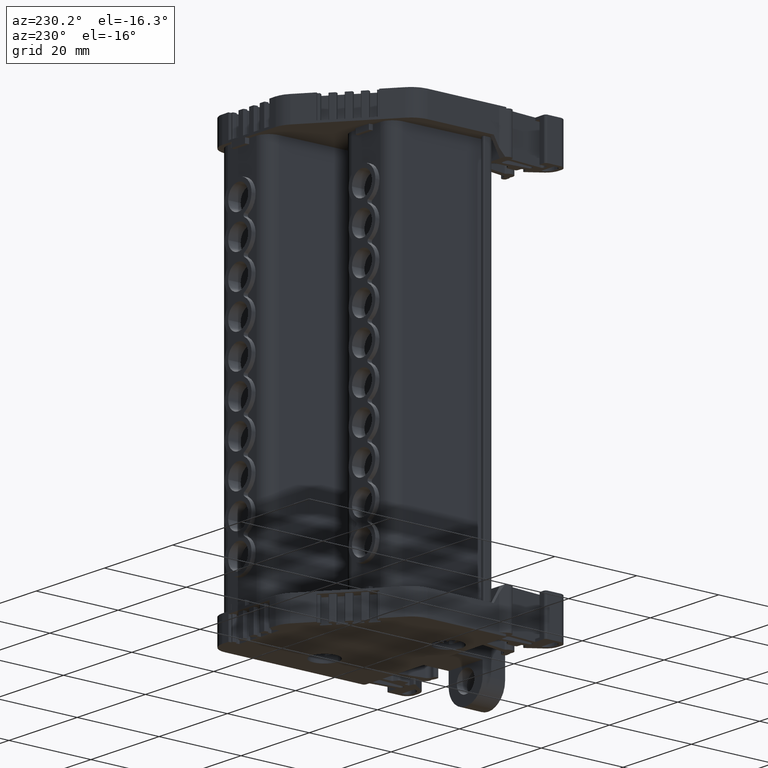
[diagram: clean part render]
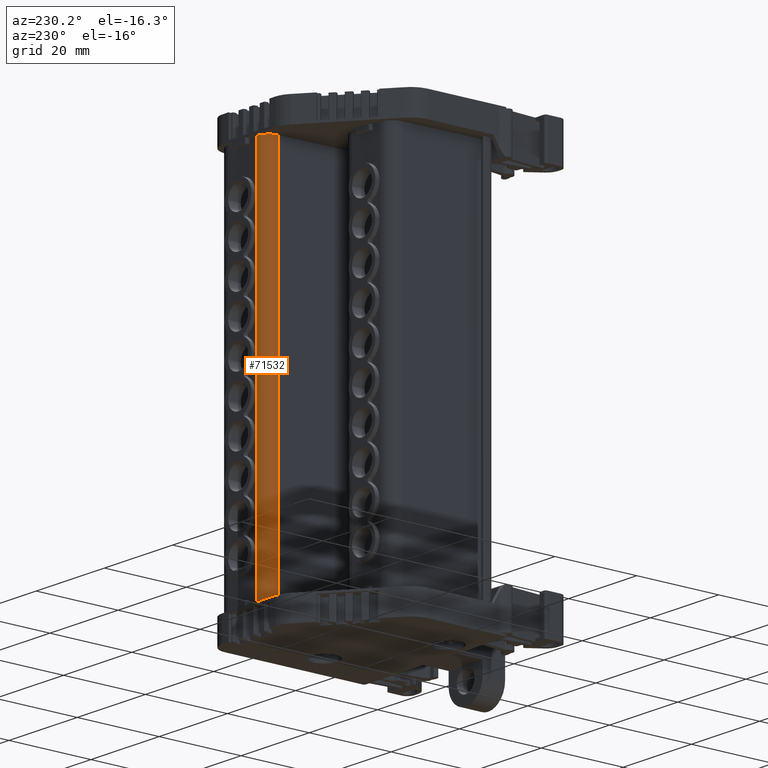
[diagram: same view with one face highlighted and labeled with its STEP entity id]
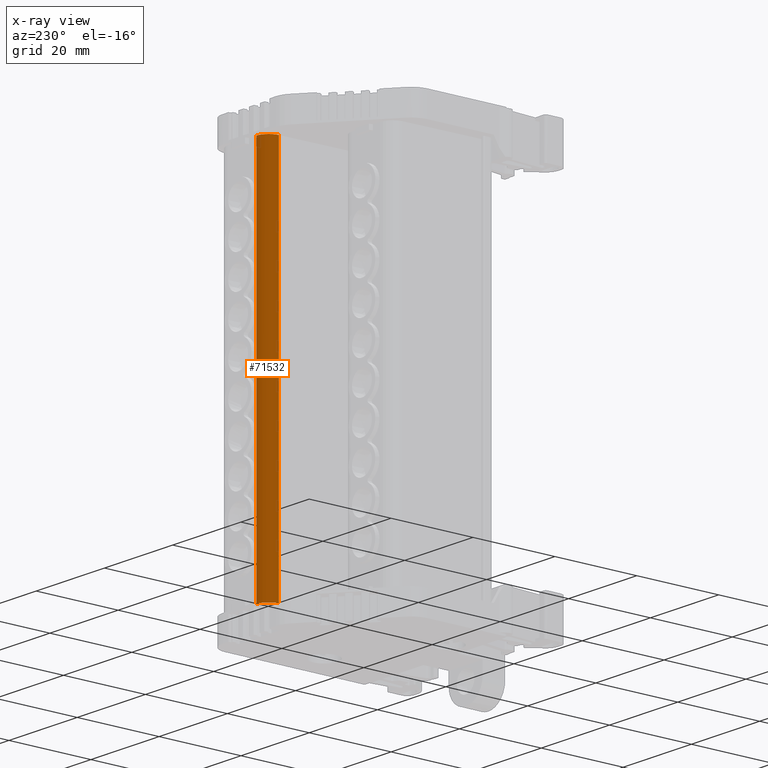
[diagram: x-ray of the same camera — body ghosted, the highlighted face saturated]
A machine part, auxiliary view. The second image highlights one B-rep face of the part: STEP entity #71532.
The next image is the same camera in x-ray: the body ghosted, the highlighted face saturated — about 0% of this face is hidden behind the body in this view.
In plain terms, the highlighted cylindrical surface (edge-blend (fillet) strip) has radius 2.9989 mm, axis along (-0, -0, -1).
Its self-contained STEP definition (entity closure, byte-faithful):
#2738 = CARTESIAN_POINT ( 'NONE',  ( -38.77832966746753800, 48.51556673507089800, -36.09641155510129100 ) ) ;
#2832 = CARTESIAN_POINT ( 'NONE',  ( -41.77673668709966400, 45.56904048599096800, -36.09641155509967100 ) ) ;
#6140 = VERTEX_POINT ( 'NONE', #49371 ) ;
#6170 = VERTEX_POINT ( 'NONE', #49372 ) ;
#22410 = LINE ( 'NONE', #22462, #25426 ) ;
#22462 = CARTESIAN_POINT ( 'NONE',  ( -41.77673668709328300, 45.56904048599116000, -23.93093807035376500 ) ) ;
#22477 = DIRECTION ( 'NONE',  ( 5.325625425352352500E-013, 1.604252062634170100E-014, 1.000000000000000000 ) ) ;
#22512 = CARTESIAN_POINT ( 'NONE',  ( -38.77832966746753800, 48.51556673507089800, -36.09641155510129100 ) ) ;
#22514 = CARTESIAN_POINT ( 'NONE',  ( -38.77832966744316000, 48.51556673507284500, 55.46945965624414800 ) ) ;
#22570 = CARTESIAN_POINT ( 'NONE',  ( -39.55456103231055200, 48.43925996020429600, 55.46945965624458100 ) ) ;
#22577 = CARTESIAN_POINT ( 'NONE',  ( -41.15713683461223800, 47.38355890510240400, 55.46945965624544100 ) ) ;
#22612 = CARTESIAN_POINT ( 'NONE',  ( -41.77673668705082800, 45.56904048599127300, 55.46945965624579600 ) ) ;
#22620 = CARTESIAN_POINT ( 'NONE',  ( -39.16651845409662500, 48.51556673506508600, 55.46945965624434600 ) ) ;
#22621 = CARTESIAN_POINT ( 'NONE',  ( -41.38042425238855100, 47.05715042564859400, 55.46945965624555400 ) ) ;
#22629 = CARTESIAN_POINT ( 'NONE',  ( -40.27312969142844400, 48.14528576018201300, 55.46945965624495000 ) ) ;
#22649 = CARTESIAN_POINT ( 'NONE',  ( -41.76996186075249500, 45.95717002463248900, 55.46945965624578200 ) ) ;
#22651 = CARTESIAN_POINT ( 'NONE',  ( -41.68689443099848500, 46.34382176523457300, 55.46945965624575300 ) ) ;
#22652 = CARTESIAN_POINT ( 'NONE',  ( -40.60338536005419000, 47.92772896360436600, 55.46945965624513500 ) ) ;
#22654 = CARTESIAN_POINT ( 'NONE',  ( -38.77832966744316000, 48.51556673507284500, 55.46945965624414800 ) ) ;
#24649 = EDGE_LOOP ( 'NONE', ( #83027, #82952, #82935, #82958 ) ) ;
#25426 = VECTOR ( 'NONE', #22477, 1000.000000000000000 ) ;
#33594 = CARTESIAN_POINT ( 'NONE',  ( -41.77673668709966400, 45.56904048599096800, -36.09641155509967100 ) ) ;
#33604 = CARTESIAN_POINT ( 'NONE',  ( -41.15713683466101000, 47.38355890510094100, -36.09641155510001200 ) ) ;
#33606 = CARTESIAN_POINT ( 'NONE',  ( -40.60338536010296900, 47.92772896360290200, -36.09641155510032500 ) ) ;
#33610 = CARTESIAN_POINT ( 'NONE',  ( -40.27312969147721600, 48.14528576018052100, -36.09641155510048800 ) ) ;
#33623 = CARTESIAN_POINT ( 'NONE',  ( -38.77832966746753800, 48.51556673507089800, -36.09641155510129100 ) ) ;
#33624 = CARTESIAN_POINT ( 'NONE',  ( -39.16651845414537500, 48.51556673506362200, -36.09641155510107800 ) ) ;
#33628 = CARTESIAN_POINT ( 'NONE',  ( -41.68689443104725000, 46.34382176523310900, -36.09641155509970600 ) ) ;
#33630 = CARTESIAN_POINT ( 'NONE',  ( -41.76996186080126000, 45.95717002463102600, -36.09641155509965700 ) ) ;
#33637 = CARTESIAN_POINT ( 'NONE',  ( -39.55456103235931000, 48.43925996020283300, -36.09641155510089300 ) ) ;
#33644 = CARTESIAN_POINT ( 'NONE',  ( -41.38042425243732200, 47.05715042564712300, -36.09641155509988400 ) ) ;
#36177 = VERTEX_POINT ( 'NONE', #2738 ) ;
#36189 = VERTEX_POINT ( 'NONE', #2832 ) ;
#36774 = B_SPLINE_CURVE_WITH_KNOTS ( 'NONE', 3,
 ( #33623, #33624, #33637, #33610, #33606, #33604, #33644, #33628, #33630, #33594 ),
 .UNSPECIFIED., .F., .F.,
 ( 4, 2, 2, 2, 4 ),
 ( 0.0000000000000000000, 0.2500000000000000000, 0.5000000000000000000, 0.7500000000000000000, 1.000000000000000000 ),
 .UNSPECIFIED. ) ;
#36804 = B_SPLINE_CURVE_WITH_KNOTS ( 'NONE', 1,
 ( #22512, #22514 ),
 .UNSPECIFIED., .F., .F.,
 ( 2, 2 ),
 ( 0.0000000000000000000, 1.000000000000000000 ),
 .UNSPECIFIED. ) ;
#36810 = B_SPLINE_CURVE_WITH_KNOTS ( 'NONE', 3,
 ( #22612, #22649, #22651, #22621, #22577, #22652, #22629, #22570, #22620, #22654 ),
 .UNSPECIFIED., .F., .F.,
 ( 4, 2, 2, 2, 4 ),
 ( 0.0000000000000000000, 0.2500000000000000000, 0.5000000000000000000, 0.7500000000000000000, 1.000000000000000000 ),
 .UNSPECIFIED. ) ;
#49371 = CARTESIAN_POINT ( 'NONE',  ( -41.77673668705082800, 45.56904048599127300, 55.46945965624579600 ) ) ;
#49372 = CARTESIAN_POINT ( 'NONE',  ( -38.77832966744316000, 48.51556673507284500, 55.46945965624414800 ) ) ;
#53688 = EDGE_CURVE ( 'NONE', #36177, #36189, #36774, .T. ) ;
#53943 = EDGE_CURVE ( 'NONE', #36189, #6140, #22410, .T. ) ;
#53966 = EDGE_CURVE ( 'NONE', #36177, #6170, #36804, .T. ) ;
#53982 = EDGE_CURVE ( 'NONE', #6140, #6170, #36810, .T. ) ;
#59867 = AXIS2_PLACEMENT_3D ( 'NONE', #77322, #77275, #77318 ) ;
#71532 = ADVANCED_FACE ( 'NONE', ( #77180 ), #77320, .T. ) ;
#77180 = FACE_OUTER_BOUND ( 'NONE', #24649, .T. ) ;
#77275 = DIRECTION ( 'NONE',  ( -5.325625425352352500E-013, -1.604252062634170100E-014, -1.000000000000000000 ) ) ;
#77318 = DIRECTION ( 'NONE',  ( -1.000000000000000000, 0.0000000000000000000, 5.321834506509055500E-013 ) ) ;
#77320 = CYLINDRICAL_SURFACE ( 'NONE', #59867, 2.998863636113985500 ) ;
#77322 = CARTESIAN_POINT ( 'NONE',  ( -38.77832979243652300, 45.51670309895615700, -23.93093807035536000 ) ) ;
#82935 = ORIENTED_EDGE ( 'NONE', *, *, #53943, .T. ) ;
#82952 = ORIENTED_EDGE ( 'NONE', *, *, #53688, .T. ) ;
#82958 = ORIENTED_EDGE ( 'NONE', *, *, #53982, .T. ) ;
#83027 = ORIENTED_EDGE ( 'NONE', *, *, #53966, .F. ) ;